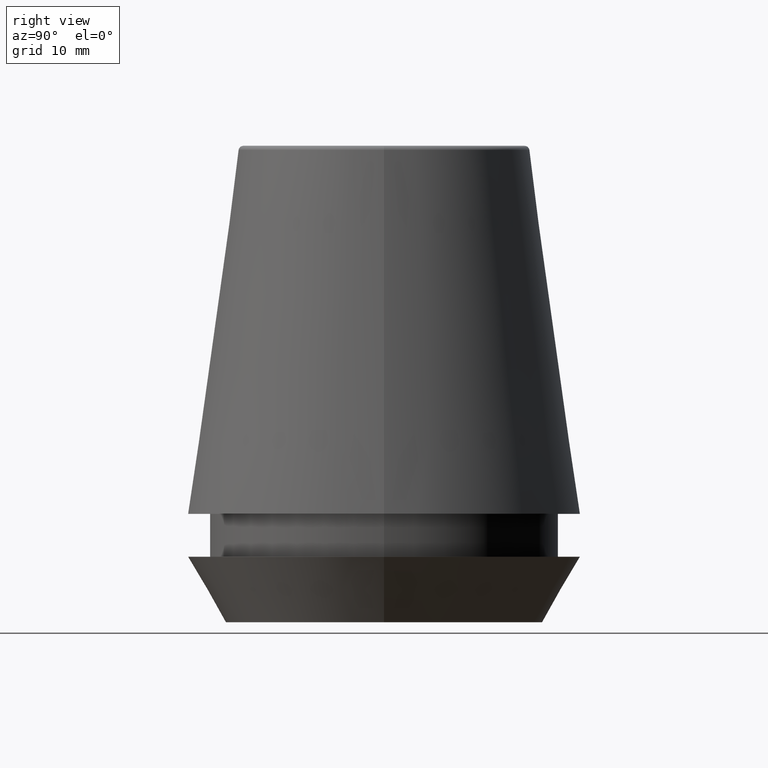
[diagram: clean part render]
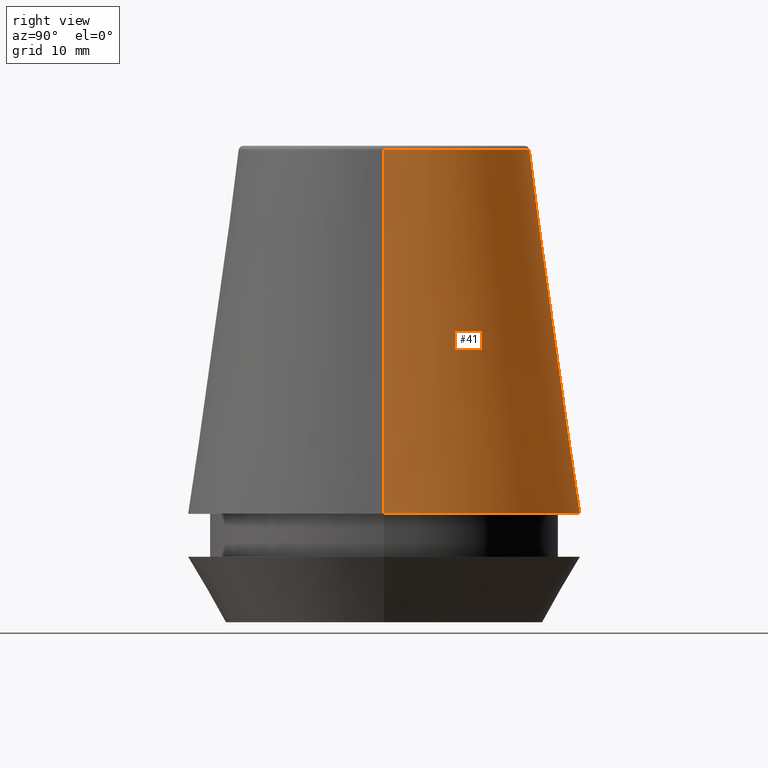
[diagram: same view with one face highlighted and labeled with its STEP entity id]
A machine part, right view. The second image highlights one B-rep face of the part: STEP entity #41.
In plain terms, the highlighted conical surface has half-angle 8 deg.
Its self-contained STEP definition (entity closure, byte-faithful):
#7 = EDGE_CURVE ( 'NONE', #222, #298, #186, .T. ) ;
#14 = VERTEX_POINT ( 'NONE', #69 ) ;
#21 = LINE ( 'NONE', #250, #63 ) ;
#41 = ADVANCED_FACE ( 'NONE', ( #166 ), #304, .T. ) ;
#55 = ORIENTED_EDGE ( 'NONE', *, *, #330, .F. ) ;
#58 = DIRECTION ( 'NONE',  ( -0.1391731009600586900, 0.0000000000000000000, -0.9902680687415712500 ) ) ;
#63 = VECTOR ( 'NONE', #58, 1000.000000000000000 ) ;
#69 = CARTESIAN_POINT ( 'NONE',  ( -12.20600611160694300, 0.0000000000000000000, 39.65566924038402900 ) ) ;
#70 = VERTEX_POINT ( 'NONE', #363 ) ;
#79 = CIRCLE ( 'NONE', #380, 12.20600611160694300 ) ;
#85 = DIRECTION ( 'NONE',  ( 1.000000000000000000, 0.0000000000000000000, 0.0000000000000000000 ) ) ;
#95 = DIRECTION ( 'NONE',  ( 0.0000000000000000000, 0.0000000000000000000, -1.000000000000000000 ) ) ;
#106 = VECTOR ( 'NONE', #277, 1000.000000000000000 ) ;
#121 = DIRECTION ( 'NONE',  ( 1.000000000000000000, 0.0000000000000000000, 0.0000000000000000000 ) ) ;
#123 = CARTESIAN_POINT ( 'NONE',  ( 0.0000000000000000000, 0.0000000000000000000, 9.099999999999997900 ) ) ;
#165 = AXIS2_PLACEMENT_3D ( 'NONE', #248, #95, #302 ) ;
#166 = FACE_OUTER_BOUND ( 'NONE', #315, .T. ) ;
#184 = CARTESIAN_POINT ( 'NONE',  ( 0.0000000000000000000, 0.0000000000000000000, 39.65566924038402900 ) ) ;
#186 = CIRCLE ( 'NONE', #332, 16.50032537154048700 ) ;
#210 = CARTESIAN_POINT ( 'NONE',  ( 16.50032537154048700, 2.020707065114692300E-015, 9.099999999999997900 ) ) ;
#211 = CARTESIAN_POINT ( 'NONE',  ( 16.50032537154048700, 2.020707065114692300E-015, 9.099999999999997900 ) ) ;
#212 = DIRECTION ( 'NONE',  ( -0.0000000000000000000, -0.0000000000000000000, 1.000000000000000000 ) ) ;
#222 = VERTEX_POINT ( 'NONE', #210 ) ;
#231 = ORIENTED_EDGE ( 'NONE', *, *, #372, .T. ) ;
#248 = CARTESIAN_POINT ( 'NONE',  ( 0.0000000000000000000, 0.0000000000000000000, 9.099999999999997900 ) ) ;
#250 = CARTESIAN_POINT ( 'NONE',  ( -16.50032537154048700, 0.0000000000000000000, 9.099999999999997900 ) ) ;
#252 = DIRECTION ( 'NONE',  ( -0.0000000000000000000, -0.0000000000000000000, 1.000000000000000000 ) ) ;
#261 = LINE ( 'NONE', #211, #106 ) ;
#275 = CARTESIAN_POINT ( 'NONE',  ( -16.50032537154048700, 0.0000000000000000000, 9.099999999999997900 ) ) ;
#277 = DIRECTION ( 'NONE',  ( 0.1391731009600586900, 1.704378926181473100E-017, -0.9902680687415712500 ) ) ;
#298 = VERTEX_POINT ( 'NONE', #275 ) ;
#302 = DIRECTION ( 'NONE',  ( -1.000000000000000000, 0.0000000000000000000, 0.0000000000000000000 ) ) ;
#304 = CONICAL_SURFACE ( 'NONE', #165, 16.50032537154048700, 0.1396263401595395900 ) ;
#309 = EDGE_CURVE ( 'NONE', #70, #14, #79, .T. ) ;
#315 = EDGE_LOOP ( 'NONE', ( #343, #231, #345, #55 ) ) ;
#330 = EDGE_CURVE ( 'NONE', #14, #298, #21, .T. ) ;
#332 = AXIS2_PLACEMENT_3D ( 'NONE', #123, #252, #121 ) ;
#343 = ORIENTED_EDGE ( 'NONE', *, *, #309, .F. ) ;
#345 = ORIENTED_EDGE ( 'NONE', *, *, #7, .T. ) ;
#363 = CARTESIAN_POINT ( 'NONE',  ( 12.20600611160694300, 1.757755848304969800E-015, 39.65566924038402900 ) ) ;
#372 = EDGE_CURVE ( 'NONE', #70, #222, #261, .T. ) ;
#380 = AXIS2_PLACEMENT_3D ( 'NONE', #184, #212, #85 ) ;